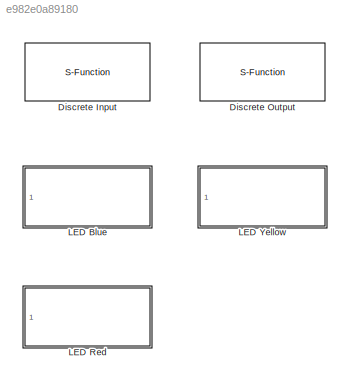
MODEL slx_e982e0a89180
KIND library
BLOCK [S-Function] Discrete Input
  EnableBusSupport = off
  FunctionName = sfunar_digitalInput
  Parameters = SParameter1, SampleTime
  Ports = [0, 1]
BLOCK [S-Function] Discrete Output
  EnableBusSupport = off
  FunctionName = sfunar_digitalOutput
  Parameters = uint8(SParameter1), SampleTime
  Ports = [1]
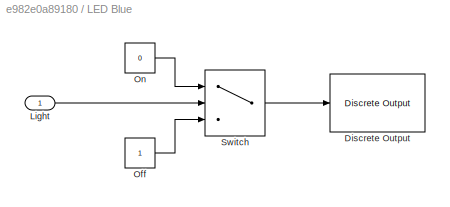
BLOCK [SubSystem] LED Blue
  FunctionWithSeparateData = off
  MaskHideContents = off
  MinAlgLoopOccurrences = off
  Opaque = off
  Ports = [1]
  PropExecContextOutsideSubsystem = off
  RTWSystemCode = Auto
  RequestExecContextInheritance = off
BLOCK [Reference] LED Blue/Discrete Output  REF=Discrete_IO_Library/Discrete Output
  Ports = [1]
  SParameter1 = 25
  SampleTime = -1
  SourceBlock = Discrete_IO_Library/Discrete Output
  SourceType = Arduino Digital Output
BLOCK [Inport] LED Blue/Light
  IconDisplay = Port number
BLOCK [Constant] LED Blue/Off
  OutDataTypeStr = uint8
BLOCK [Constant] LED Blue/On
  OutDataTypeStr = uint8
  Value = 0
BLOCK [Switch] LED Blue/Switch
  Criteria = u2 ~= 0
  InputSameDT = off
  SaturateOnIntegerOverflow = off
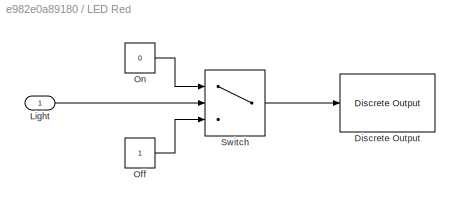
BLOCK [SubSystem] LED Red
  FunctionWithSeparateData = off
  MaskHideContents = off
  MinAlgLoopOccurrences = off
  Opaque = off
  Ports = [1]
  PropExecContextOutsideSubsystem = off
  RTWSystemCode = Auto
  RequestExecContextInheritance = off
BLOCK [Reference] LED Red/Discrete Output  REF=Discrete_IO_Library/Discrete Output
  Ports = [1]
  SParameter1 = 27
  SampleTime = -1
  SourceBlock = Discrete_IO_Library/Discrete Output
  SourceType = Arduino Digital Output
BLOCK [Inport] LED Red/Light
  IconDisplay = Port number
BLOCK [Constant] LED Red/Off
  OutDataTypeStr = uint8
BLOCK [Constant] LED Red/On
  OutDataTypeStr = uint8
  Value = 0
BLOCK [Switch] LED Red/Switch
  Criteria = u2 ~= 0
  InputSameDT = off
  SaturateOnIntegerOverflow = off
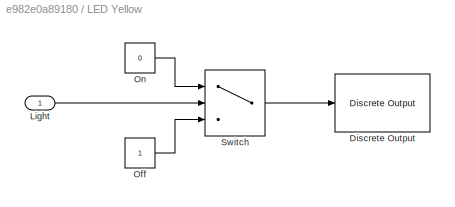
BLOCK [SubSystem] LED Yellow
  FunctionWithSeparateData = off
  MaskHideContents = off
  MinAlgLoopOccurrences = off
  Opaque = off
  Ports = [1]
  PropExecContextOutsideSubsystem = off
  RTWSystemCode = Auto
  RequestExecContextInheritance = off
BLOCK [Reference] LED Yellow/Discrete Output  REF=Discrete_IO_Library/Discrete Output
  Ports = [1]
  SParameter1 = 26
  SampleTime = -1
  SourceBlock = Discrete_IO_Library/Discrete Output
  SourceType = Arduino Digital Output
BLOCK [Inport] LED Yellow/Light
  IconDisplay = Port number
BLOCK [Constant] LED Yellow/Off
  OutDataTypeStr = uint8
BLOCK [Constant] LED Yellow/On
  OutDataTypeStr = uint8
  Value = 0
BLOCK [Switch] LED Yellow/Switch
  Criteria = u2 ~= 0
  InputSameDT = off
  SaturateOnIntegerOverflow = off
LINE LED Blue/Light:1 -> LED Blue/Switch:2
LINE LED Blue/Off:1 -> LED Blue/Switch:3
LINE LED Blue/On:1 -> LED Blue/Switch:1
LINE LED Blue/Switch:1 -> LED Blue/Discrete Output:1
LINE LED Red/Light:1 -> LED Red/Switch:2
LINE LED Red/Off:1 -> LED Red/Switch:3
LINE LED Red/On:1 -> LED Red/Switch:1
LINE LED Red/Switch:1 -> LED Red/Discrete Output:1
LINE LED Yellow/Light:1 -> LED Yellow/Switch:2
LINE LED Yellow/Off:1 -> LED Yellow/Switch:3
LINE LED Yellow/On:1 -> LED Yellow/Switch:1
LINE LED Yellow/Switch:1 -> LED Yellow/Discrete Output:1
